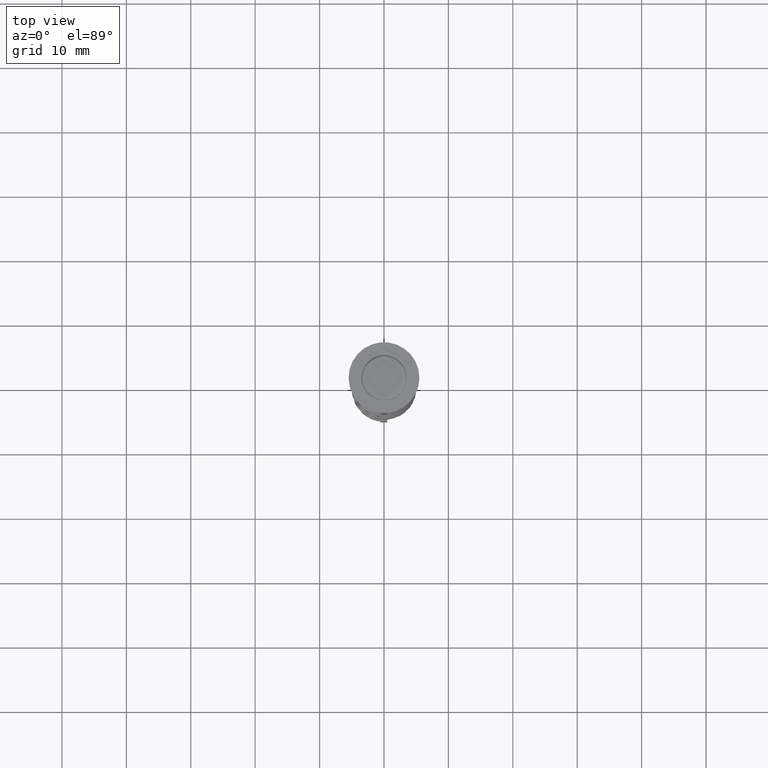
[diagram: clean part render]
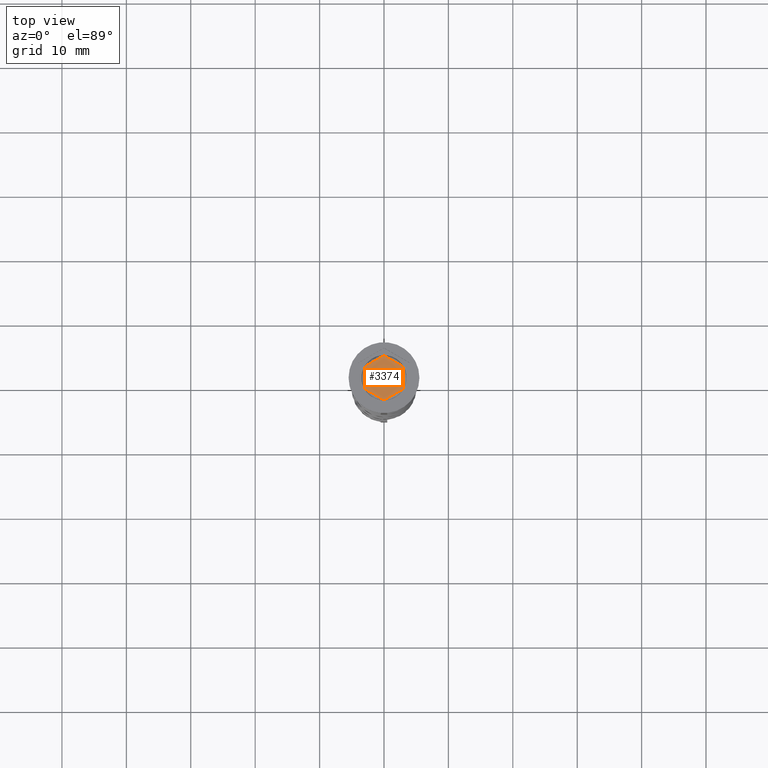
[diagram: same view with one face highlighted and labeled with its STEP entity id]
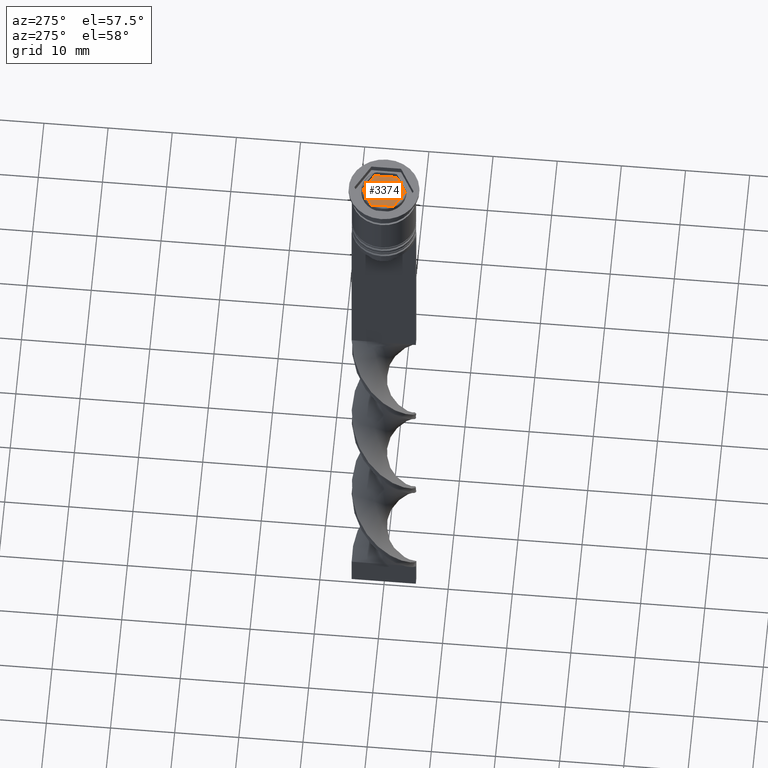
[diagram: same view with one face highlighted and labeled with its STEP entity id]
A machine part, top view. The second image highlights one B-rep face of the part: STEP entity #3374.
A second angle (auxiliary view) of the same face is appended — the face is thin or edge-on in the first view.
In plain terms, the highlighted planar face has unit normal (0, 0, 1).
Its self-contained STEP definition (entity closure, byte-faithful):
#20 = CARTESIAN_POINT ( 'NONE',  ( -4.336808689942017736E-16, -3.464101615137753942, -1.000000000000000888 ) ) ;
#78 = VECTOR ( 'NONE', #3676, 999.9999999999998863 ) ;
#120 = VERTEX_POINT ( 'NONE', #2150 ) ;
#291 = EDGE_CURVE ( 'NONE', #359, #3150, #1997, .T. ) ;
#347 = PLANE ( 'NONE',  #549 ) ;
#359 = VERTEX_POINT ( 'NONE', #2340 ) ;
#370 = VECTOR ( 'NONE', #1479, 1000.000000000000114 ) ;
#518 = LINE ( 'NONE', #2181, #1511 ) ;
#549 = AXIS2_PLACEMENT_3D ( 'NONE', #668, #1489, #1818 ) ;
#570 = DIRECTION ( 'NONE',  ( 0.8660254037844387076, 0.4999999999999999445, -0.000000000000000000 ) ) ;
#631 = FACE_OUTER_BOUND ( 'NONE', #1490, .T. ) ;
#668 = CARTESIAN_POINT ( 'NONE',  ( 0.000000000000000000, 0.000000000000000000, -1.000000000000000000 ) ) ;
#767 = DIRECTION ( 'NONE',  ( -0.8660254037844387076, -0.5000000000000001110, 0.000000000000000000 ) ) ;
#901 = CARTESIAN_POINT ( 'NONE',  ( 3.000000000000000888, 1.732050807568877193, -1.000000000000000888 ) ) ;
#958 = CARTESIAN_POINT ( 'NONE',  ( -3.000000000000000000, 1.732050807568876971, -1.000000000000000888 ) ) ;
#981 = EDGE_CURVE ( 'NONE', #3150, #3670, #1948, .T. ) ;
#1042 = CARTESIAN_POINT ( 'NONE',  ( -2.168404344971008868E-16, -3.464101615137754386, -1.000000000000000888 ) ) ;
#1303 = ORIENTED_EDGE ( 'NONE', *, *, #981, .F. ) ;
#1443 = LINE ( 'NONE', #2592, #370 ) ;
#1479 = DIRECTION ( 'NONE',  ( 0.8660254037844387076, -0.4999999999999997780, 0.000000000000000000 ) ) ;
#1489 = DIRECTION ( 'NONE',  ( 0.000000000000000000, 0.000000000000000000, 1.000000000000000000 ) ) ;
#1490 = EDGE_LOOP ( 'NONE', ( #3552, #1303, #3017, #1935, #3464, #1685 ) ) ;
#1511 = VECTOR ( 'NONE', #3291, 1000.000000000000000 ) ;
#1631 = LINE ( 'NONE', #1042, #3485 ) ;
#1685 = ORIENTED_EDGE ( 'NONE', *, *, #1785, .F. ) ;
#1785 = EDGE_CURVE ( 'NONE', #2901, #120, #518, .T. ) ;
#1818 = DIRECTION ( 'NONE',  ( 1.000000000000000000, 0.000000000000000000, -0.000000000000000000 ) ) ;
#1863 = VECTOR ( 'NONE', #3129, 1000.000000000000000 ) ;
#1935 = ORIENTED_EDGE ( 'NONE', *, *, #3626, .F. ) ;
#1948 = LINE ( 'NONE', #3135, #2946 ) ;
#1997 = LINE ( 'NONE', #3062, #1863 ) ;
#2035 = CARTESIAN_POINT ( 'NONE',  ( 0.000000000000000000, 3.464101615137754386, -1.000000000000000888 ) ) ;
#2077 = VERTEX_POINT ( 'NONE', #20 ) ;
#2150 = CARTESIAN_POINT ( 'NONE',  ( 2.999999999999999112, -1.732050807568877193, -1.000000000000000888 ) ) ;
#2181 = CARTESIAN_POINT ( 'NONE',  ( 2.999999999999999112, -1.732050807568877637, -1.000000000000000888 ) ) ;
#2340 = CARTESIAN_POINT ( 'NONE',  ( -3.000000000000000000, -1.732050807568876527, -1.000000000000000888 ) ) ;
#2544 = LINE ( 'NONE', #2558, #78 ) ;
#2558 = CARTESIAN_POINT ( 'NONE',  ( -3.000000000000000000, -1.732050807568876971, -1.000000000000000888 ) ) ;
#2592 = CARTESIAN_POINT ( 'NONE',  ( 3.000000000000000888, 1.732050807568877415, -1.000000000000000888 ) ) ;
#2901 = VERTEX_POINT ( 'NONE', #901 ) ;
#2946 = VECTOR ( 'NONE', #570, 999.9999999999998863 ) ;
#3017 = ORIENTED_EDGE ( 'NONE', *, *, #291, .F. ) ;
#3037 = EDGE_CURVE ( 'NONE', #120, #2077, #1631, .T. ) ;
#3062 = CARTESIAN_POINT ( 'NONE',  ( -3.000000000000000000, 1.732050807568876971, -1.000000000000000888 ) ) ;
#3129 = DIRECTION ( 'NONE',  ( 0.000000000000000000, 1.000000000000000000, 0.000000000000000000 ) ) ;
#3135 = CARTESIAN_POINT ( 'NONE',  ( 0.000000000000000000, 3.464101615137754386, -1.000000000000000888 ) ) ;
#3150 = VERTEX_POINT ( 'NONE', #958 ) ;
#3286 = EDGE_CURVE ( 'NONE', #3670, #2901, #1443, .T. ) ;
#3291 = DIRECTION ( 'NONE',  ( -5.007715329123864752E-16, -1.000000000000000000, 0.000000000000000000 ) ) ;
#3374 = ADVANCED_FACE ( 'NONE', ( #631 ), #347, .T. ) ;
#3464 = ORIENTED_EDGE ( 'NONE', *, *, #3037, .F. ) ;
#3485 = VECTOR ( 'NONE', #767, 999.9999999999998863 ) ;
#3552 = ORIENTED_EDGE ( 'NONE', *, *, #3286, .F. ) ;
#3626 = EDGE_CURVE ( 'NONE', #2077, #359, #2544, .T. ) ;
#3670 = VERTEX_POINT ( 'NONE', #2035 ) ;
#3676 = DIRECTION ( 'NONE',  ( -0.8660254037844387076, 0.4999999999999999445, 0.000000000000000000 ) ) ;